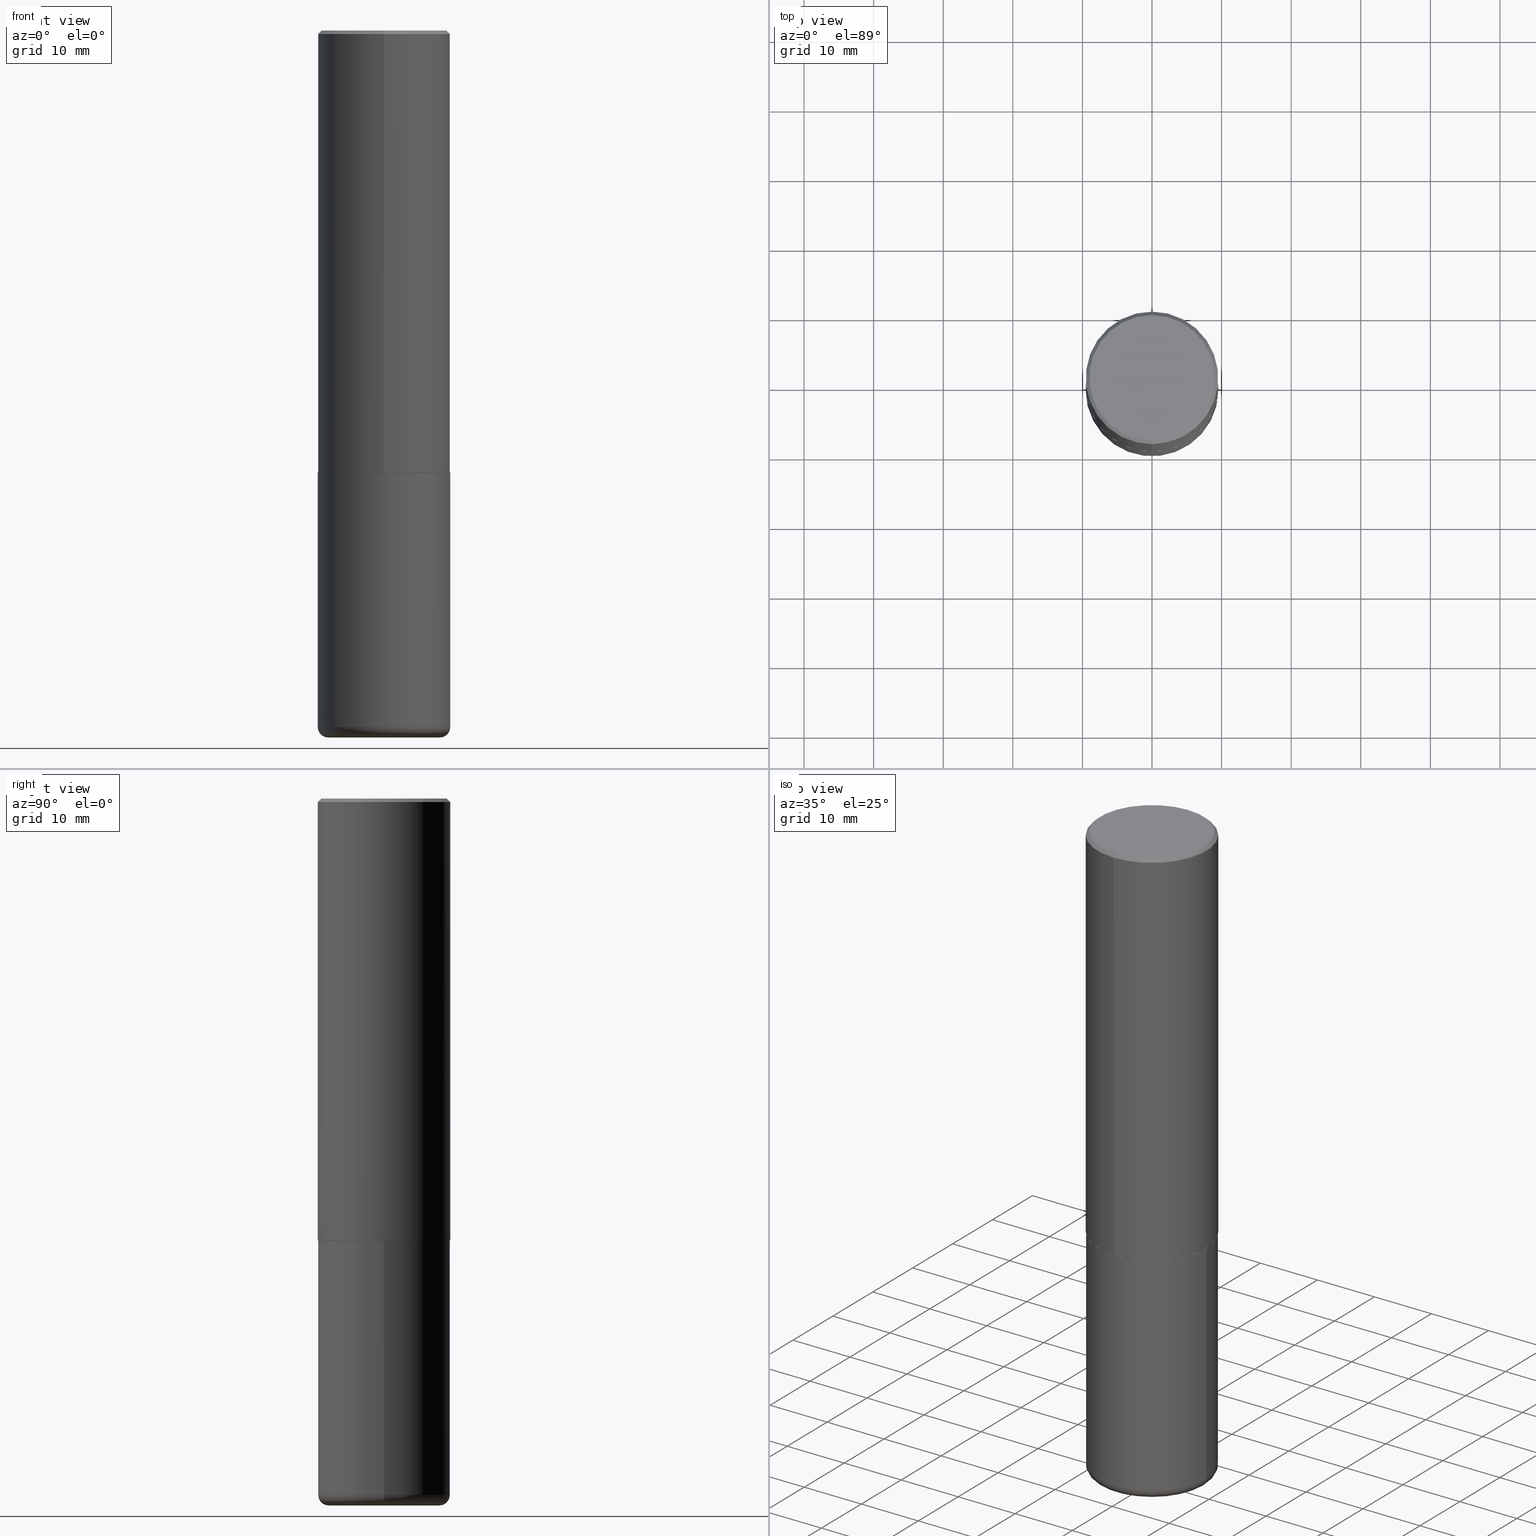
[diagram: canonical four-view strip — front | top / right | iso, engineering-drawing reading convention]
A machine part, canonical four-view strip (front | top / right | iso — engineering-drawing reading convention). The complete STEP part file that produces these views, byte-faithful:
ISO-10303-21;
HEADER;
FILE_DESCRIPTION (( 'STEP AP203' ),
    '1' );
FILE_NAME ('36713.STEP',
    '2024-03-01T17:28:04',
    ( '' ),
    ( '' ),
    'SwSTEP 2.0',
    'SolidWorks 2023',
    '' );
FILE_SCHEMA (( 'CONFIG_CONTROL_DESIGN' ));
ENDSEC;

DATA;
#1 = DIRECTION ( 'NONE',  ( -2.445468806185136597E-29, 3.491481338843145583E-15, 1.000000000000000000 ) ) ;
#2 = CARTESIAN_POINT ( 'NONE',  ( 6.111361335692102474E-29, -8.732012372055284037E-15, -2.499999999999999556 ) ) ;
#3 =( CONVERSION_BASED_UNIT ( 'INCH', #157 ) LENGTH_UNIT ( ) NAMED_UNIT ( #13 ) );
#4 = CARTESIAN_POINT ( 'NONE',  ( -2.611628041454602471E-15, -0.3740000000000087699, -2.499999999999998668 ) ) ;
#5 = AXIS2_PLACEMENT_3D ( 'NONE', #94, #37, #357 ) ;
#6 = CIRCLE ( 'NONE', #160, 0.3150000000000000577 ) ;
#7 = CARTESIAN_POINT ( 'NONE',  ( 6.113672015462840371E-29, -8.728703347107863365E-15, -2.499999999999999556 ) ) ;
#8 = UNCERTAINTY_MEASURE_WITH_UNIT (LENGTH_MEASURE( 1.000000000000000082E-05 ), #3, 'distance_accuracy_value', 'NONE');
#9 = CARTESIAN_POINT ( 'NONE',  ( -0.3150000000000000577, -1.140980847683494193E-14, -4.000000000000000888 ) ) ;
#10 = APPROVAL_STATUS ( 'not_yet_approved' ) ;
#11 = EDGE_CURVE ( 'NONE', #366, #172, #68, .T. ) ;
#12 = AXIS2_PLACEMENT_3D ( 'NONE', #213, #237, #341 ) ;
#13 = DIMENSIONAL_EXPONENTS ( 1.000000000000000000, 0.000000000000000000, 0.000000000000000000, 0.000000000000000000, 0.000000000000000000, 0.000000000000000000, 0.000000000000000000 ) ;
#14 = ADVANCED_BREP_SHAPE_REPRESENTATION ( '36713', ( #203, #344, #105 ), #321 ) ;
#15 = ORIENTED_EDGE ( 'NONE', *, *, #368, .F. ) ;
#16 = EDGE_CURVE ( 'NONE', #314, #366, #408, .T. ) ;
#17 = EDGE_LOOP ( 'NONE', ( #100, #339, #79, #149 ) ) ;
#18 = DIRECTION ( 'NONE',  ( 2.438088387897960049E-29, -3.491481338843145188E-15, -1.000000000000000000 ) ) ;
#19 = CIRCLE ( 'NONE', #206, 0.3550000000000001488 ) ;
#20 = DIRECTION ( 'NONE',  ( 1.000000000000000000, -6.982962677686265922E-15, 4.876176775795935793E-29 ) ) ;
#21 = ORIENTED_EDGE ( 'NONE', *, *, #80, .F. ) ;
#22 = DIRECTION ( 'NONE',  ( -2.444544534276841438E-29, 3.492804948822114088E-15, 1.000000000000000000 ) ) ;
#23 = CIRCLE ( 'NONE', #184, 0.3750000000000000555 ) ;
#24 = ADVANCED_FACE ( 'NONE', ( #147 ), #82, .T. ) ;
#25 = CARTESIAN_POINT ( 'NONE',  ( 0.000000000000000000, 0.000000000000000000, 0.000000000000000000 ) ) ;
#26 = ORIENTED_EDGE ( 'NONE', *, *, #11, .F. ) ;
#27 = PRODUCT_RELATED_PRODUCT_CATEGORY ( 'detail', '', ( #209 ) ) ;
#28 = MECHANICAL_CONTEXT ( 'NONE', #365, 'mechanical' ) ;
#29 = CARTESIAN_POINT ( 'NONE',  ( 6.111361335692102474E-29, -8.732012372055284037E-15, -2.499999999999999556 ) ) ;
#30 = ADVANCED_FACE ( 'NONE', ( #114 ), #292, .T. ) ;
#31 = COORDINATED_UNIVERSAL_TIME_OFFSET ( 5, 0, .BEHIND. ) ;
#32 = LINE ( 'NONE', #288, #305 ) ;
#33 = CLOSED_SHELL ( 'NONE', ( #373, #24, #418, #132, #124, #88, #218, #398 ) ) ;
#34 = AXIS2_PLACEMENT_3D ( 'NONE', #29, #222, #182 ) ;
#35 = DIRECTION ( 'NONE',  ( -6.982962677686266711E-15, -1.000000000000000000, 3.492804948822114482E-15 ) ) ;
#36 = APPROVAL_STATUS ( 'not_yet_approved' ) ;
#37 = DIRECTION ( 'NONE',  ( -2.444544534276841438E-29, 3.492804948822114088E-15, 1.000000000000000000 ) ) ;
#38 = EDGE_LOOP ( 'NONE', ( #395, #372, #53, #21 ) ) ;
#39 = DIRECTION ( 'NONE',  ( -2.444544534276841158E-29, 3.492804948822114482E-15, 1.000000000000000000 ) ) ;
#40 = ORGANIZATION ( 'UNSPECIFIED', 'UNSPECIFIED', '' ) ;
#41 = DATE_AND_TIME ( #330, #258 ) ;
#42 = ORIENTED_EDGE ( 'NONE', *, *, #291, .T. ) ;
#43 = ORIENTED_EDGE ( 'NONE', *, *, #52, .F. ) ;
#44 = PERSON_AND_ORGANIZATION ( #363, #40 ) ;
#45 = AXIS2_PLACEMENT_3D ( 'NONE', #260, #57, #215 ) ;
#46 = AXIS2_PLACEMENT_3D ( 'NONE', #251, #154, #224 ) ;
#47 = AXIS2_PLACEMENT_3D ( 'NONE', #207, #410, #374 ) ;
#48 = VERTEX_POINT ( 'NONE', #307 ) ;
#49 = CC_DESIGN_PERSON_AND_ORGANIZATION_ASSIGNMENT ( #44, #262, ( #111 ) ) ;
#50 = ORIENTED_EDGE ( 'NONE', *, *, #99, .T. ) ;
#51 = APPLICATION_CONTEXT ( 'configuration controlled 3d designs of mechanical parts and assemblies' ) ;
#52 = EDGE_CURVE ( 'NONE', #125, #205, #145, .T. ) ;
#53 = ORIENTED_EDGE ( 'NONE', *, *, #78, .F. ) ;
#54 = DIRECTION ( 'NONE',  ( 1.000000000000000000, -6.982962677686265922E-15, 0.000000000000000000 ) ) ;
#55 = ORIENTED_EDGE ( 'NONE', *, *, #71, .F. ) ;
#56 = ORIENTED_EDGE ( 'NONE', *, *, #337, .F. ) ;
#57 = DIRECTION ( 'NONE',  ( -2.445468806185136597E-29, 3.491481338843145583E-15, 1.000000000000000000 ) ) ;
#58 = CARTESIAN_POINT ( 'NONE',  ( -0.3150000000000000577, -1.151822685739767881E-14, -3.939999999999999947 ) ) ;
#59 = FACE_OUTER_BOUND ( 'NONE', #379, .T. ) ;
#60 = CIRCLE ( 'NONE', #214, 0.3750000000000002776 ) ;
#61 = ORIENTED_EDGE ( 'NONE', *, *, #337, .T. ) ;
#62 = DIRECTION ( 'NONE',  ( -6.982962677686266711E-15, -1.000000000000000000, 3.492804948822114482E-15 ) ) ;
#63 = FACE_OUTER_BOUND ( 'NONE', #397, .T. ) ;
#64 = ORIENTED_EDGE ( 'NONE', *, *, #368, .T. ) ;
#65 = PERSON_AND_ORGANIZATION ( #363, #40 ) ;
#66 = DIRECTION ( 'NONE',  ( 1.000000000000000000, -6.982962677686271444E-15, 0.000000000000000000 ) ) ;
#67 = DIRECTION ( 'NONE',  ( 1.000000000000000000, -6.982962677686264344E-15, 0.000000000000000000 ) ) ;
#68 = CIRCLE ( 'NONE', #191, 0.3750000000000000555 ) ;
#69 = AXIS2_PLACEMENT_3D ( 'NONE', #25, #176, #20 ) ;
#70 = PERSON_AND_ORGANIZATION ( #363, #40 ) ;
#71 = EDGE_CURVE ( 'NONE', #231, #315, #275, .T. ) ;
#72 = ORIENTED_EDGE ( 'NONE', *, *, #128, .T. ) ;
#73 = APPROVAL_PERSON_ORGANIZATION ( #150, #173, #319 ) ;
#74 = PERSON_AND_ORGANIZATION ( #363, #40 ) ;
#75 = EDGE_LOOP ( 'NONE', ( #77, #64, #140, #208 ) ) ;
#76 = VECTOR ( 'NONE', #115, 39.37007874015748143 ) ;
#77 = ORIENTED_EDGE ( 'NONE', *, *, #128, .F. ) ;
#78 = EDGE_CURVE ( 'NONE', #314, #223, #234, .T. ) ;
#79 = ORIENTED_EDGE ( 'NONE', *, *, #11, .T. ) ;
#80 = EDGE_CURVE ( 'NONE', #125, #314, #381, .T. ) ;
#81 = DIRECTION ( 'NONE',  ( -2.445468806185136597E-29, 3.491481338843145583E-15, 1.000000000000000000 ) ) ;
#82 = CYLINDRICAL_SURFACE ( 'NONE', #12, 0.3750000000000001665 ) ;
#83 = CARTESIAN_POINT ( 'NONE',  ( 4.579723842388064751E-45, -6.543583836022733140E-31, -1.873446680218842448E-16 ) ) ;
#84 = DIRECTION ( 'NONE',  ( -2.445468806185136597E-29, 3.491481338843145583E-15, 1.000000000000000000 ) ) ;
#85 = AXIS2_PLACEMENT_3D ( 'NONE', #130, #324, #35 ) ;
#86 = FACE_OUTER_BOUND ( 'NONE', #17, .T. ) ;
#87 = DIRECTION ( 'NONE',  ( -2.445468806185136597E-29, 3.491481338843145583E-15, 1.000000000000000000 ) ) ;
#88 = ADVANCED_FACE ( 'NONE', ( #392 ), #167, .T. ) ;
#89 = PERSON_AND_ORGANIZATION_ROLE ( 'creator' ) ;
#90 = DIRECTION ( 'NONE',  ( 1.000000000000000000, -6.982962677686265922E-15, 4.876176775795935793E-29 ) ) ;
#91 =( LENGTH_UNIT ( ) NAMED_UNIT ( * ) SI_UNIT ( $, .METRE. ) );
#92 = CARTESIAN_POINT ( 'NONE',  ( 6.111361335692102474E-29, -8.732012372055284037E-15, -2.499999999999999556 ) ) ;
#93 = VECTOR ( 'NONE', #39, 39.37007874015748143 ) ;
#94 = CARTESIAN_POINT ( 'NONE',  ( 0.000000000000000000, 0.000000000000000000, 0.000000000000000000 ) ) ;
#95 = EDGE_LOOP ( 'NONE', ( #61, #72, #317, #55 ) ) ;
#96 = CC_DESIGN_PERSON_AND_ORGANIZATION_ASSIGNMENT ( #386, #89, ( #187 ) ) ;
#97 = LINE ( 'NONE', #155, #229 ) ;
#98 = PERSON_AND_ORGANIZATION_ROLE ( 'creator' ) ;
#99 = EDGE_CURVE ( 'NONE', #48, #231, #104, .T. ) ;
#100 = ORIENTED_EDGE ( 'NONE', *, *, #409, .F. ) ;
#101 = COORDINATED_UNIVERSAL_TIME_OFFSET ( 5, 0, .BEHIND. ) ;
#102 = VERTEX_POINT ( 'NONE', #393 ) ;
#103 = ORIENTED_EDGE ( 'NONE', *, *, #212, .F. ) ;
#104 = CIRCLE ( 'NONE', #367, 0.06000000000000024758 ) ;
#105 = AXIS2_PLACEMENT_3D ( 'NONE', #412, #289, #283 ) ;
#106 = FACE_OUTER_BOUND ( 'NONE', #210, .T. ) ;
#107 = CC_DESIGN_PERSON_AND_ORGANIZATION_ASSIGNMENT ( #196, #98, ( #118 ) ) ;
#108 = VERTEX_POINT ( 'NONE', #119 ) ;
#109 = CARTESIAN_POINT ( 'NONE',  ( 6.113672015462840371E-29, -8.728703347107863365E-15, -2.499999999999999556 ) ) ;
#110 = CARTESIAN_POINT ( 'NONE',  ( 4.889089068553703440E-31, -6.985609897644257463E-17, -0.02000000000000008715 ) ) ;
#111 = SECURITY_CLASSIFICATION ( '', '', #165 ) ;
#112 = DIRECTION ( 'NONE',  ( -2.445468806185136877E-29, 3.491481338843145188E-15, 1.000000000000000000 ) ) ;
#113 = CARTESIAN_POINT ( 'NONE',  ( -2.618611004132290852E-15, -0.3750000000000090483, -2.498999999999998778 ) ) ;
#114 = FACE_OUTER_BOUND ( 'NONE', #195, .T. ) ;
#115 = DIRECTION ( 'NONE',  ( -2.444544534276841158E-29, 3.492804948822114482E-15, 1.000000000000000000 ) ) ;
#116 = ORIENTED_EDGE ( 'NONE', *, *, #136, .T. ) ;
#117 = CARTESIAN_POINT ( 'NONE',  ( 4.889089068553703440E-31, -6.985609897644257463E-17, -0.02000000000000008715 ) ) ;
#118 = PRODUCT_DEFINITION_FORMATION_WITH_SPECIFIED_SOURCE ( 'ANY', '', #209, .NOT_KNOWN. ) ;
#119 = CARTESIAN_POINT ( 'NONE',  ( 2.548781377355488296E-15, 0.3550000000000001488, -1.427290424853735415E-15 ) ) ;
#120 = DATE_AND_TIME ( #152, #270 ) ;
#121 = DIRECTION ( 'NONE',  ( -2.445468806185136877E-29, 3.491481338843145188E-15, 1.000000000000000000 ) ) ;
#122 = DIRECTION ( 'NONE',  ( 6.982962677686265922E-15, 1.000000000000000000, -3.492804948822114482E-15 ) ) ;
#123 = FACE_OUTER_BOUND ( 'NONE', #230, .T. ) ;
#124 = ADVANCED_FACE ( 'NONE', ( #63 ), #353, .T. ) ;
#125 = VERTEX_POINT ( 'NONE', #4 ) ;
#126 = PLANE ( 'NONE',  #34 ) ;
#127 = CC_DESIGN_SECURITY_CLASSIFICATION ( #111, ( #118 ) ) ;
#128 = EDGE_CURVE ( 'NONE', #200, #403, #32, .T. ) ;
#129 = FACE_OUTER_BOUND ( 'NONE', #282, .T. ) ;
#130 = CARTESIAN_POINT ( 'NONE',  ( 4.579723842388064751E-45, -6.543583836022733140E-31, -1.873446680218842448E-16 ) ) ;
#131 = CALENDAR_DATE ( 2024, 1, 3 ) ;
#132 = ADVANCED_FACE ( 'NONE', ( #123 ), #228, .T. ) ;
#133 = ORIENTED_EDGE ( 'NONE', *, *, #80, .T. ) ;
#134 = PERSON_AND_ORGANIZATION ( #363, #40 ) ;
#135 = APPROVAL_STATUS ( 'not_yet_approved' ) ;
#136 = EDGE_CURVE ( 'NONE', #108, #172, #385, .T. ) ;
#137 = APPROVAL_ROLE ( '' ) ;
#138 = CIRCLE ( 'NONE', #45, 0.3750000000000001110 ) ;
#139 = CARTESIAN_POINT ( 'NONE',  ( 6.108916791157826464E-29, -8.728519567106462304E-15, -2.498999999999999666 ) ) ;
#140 = ORIENTED_EDGE ( 'NONE', *, *, #71, .T. ) ;
#141 = EDGE_LOOP ( 'NONE', ( #301, #42, #133, #360 ) ) ;
#142 = ORIENTED_EDGE ( 'NONE', *, *, #78, .T. ) ;
#143 = CARTESIAN_POINT ( 'NONE',  ( 0.3750000000000000555, -1.134731435124021180E-14, -2.499999999999999556 ) ) ;
#144 = DIRECTION ( 'NONE',  ( -6.982962677686266711E-15, -1.000000000000000000, 2.921762560068730595E-15 ) ) ;
#145 = CIRCLE ( 'NONE', #390, 0.3739999999999999991 ) ;
#146 = AXIS2_PLACEMENT_3D ( 'NONE', #293, #287, #122 ) ;
#147 = FACE_OUTER_BOUND ( 'NONE', #302, .T. ) ;
#148 = FACE_OUTER_BOUND ( 'NONE', #348, .T. ) ;
#149 = ORIENTED_EDGE ( 'NONE', *, *, #136, .F. ) ;
#150 = PERSON_AND_ORGANIZATION ( #363, #40 ) ;
#151 = CARTESIAN_POINT ( 'NONE',  ( 0.3750000000000002220, -1.637504747917434403E-14, -3.939999999999999947 ) ) ;
#152 = CALENDAR_DATE ( 2024, 1, 3 ) ;
#153 = CONICAL_SURFACE ( 'NONE', #294, 0.3739999999999999991, 0.7853981633976873100 ) ;
#154 = DIRECTION ( 'NONE',  ( 2.444544534276841438E-29, -3.492804948822114088E-15, -1.000000000000000000 ) ) ;
#155 = CARTESIAN_POINT ( 'NONE',  ( 2.657429831742835431E-15, 0.3739999999999912839, -2.500000000000000444 ) ) ;
#156 = DIRECTION ( 'NONE',  ( 4.937700262164542520E-15, 0.7071067811865443531, -0.7071067811865506814 ) ) ;
#157 = LENGTH_MEASURE_WITH_UNIT ( LENGTH_MEASURE( 0.02539999999999999897 ), #91 );
#158 = CYLINDRICAL_SURFACE ( 'NONE', #383, 0.3750000000000001110 ) ;
#159 = VECTOR ( 'NONE', #156, 39.37007874015748143 ) ;
#160 = AXIS2_PLACEMENT_3D ( 'NONE', #309, #81, #211 ) ;
#161 = DATE_TIME_ROLE ( 'creation_date' ) ;
#162 = EDGE_LOOP ( 'NONE', ( #265, #180 ) ) ;
#163 = EDGE_CURVE ( 'NONE', #264, #200, #285, .T. ) ;
#164 = AXIS2_PLACEMENT_3D ( 'NONE', #345, #239, #54 ) ;
#165 = SECURITY_CLASSIFICATION_LEVEL ( 'unclassified' ) ;
#166 = CARTESIAN_POINT ( 'NONE',  ( 9.635147096369438236E-29, -1.375643647504199401E-14, -3.939999999999999947 ) ) ;
#167 = CONICAL_SURFACE ( 'NONE', #414, 0.3739999999999999991, 0.7853981633976873100 ) ;
#168 = ORIENTED_EDGE ( 'NONE', *, *, #409, .T. ) ;
#169 = LOCAL_TIME ( 12, 28, 4.000000000000000000, #296 ) ;
#170 = DIRECTION ( 'NONE',  ( 1.000000000000000000, -6.982962677686267499E-15, 4.883557194083113462E-29 ) ) ;
#171 = DIRECTION ( 'NONE',  ( 1.000000000000000000, -6.982962677686267499E-15, 4.883557194083113462E-29 ) ) ;
#172 = VERTEX_POINT ( 'NONE', #359 ) ;
#173 = APPROVAL ( #36, 'UNSPECIFIED' ) ;
#174 = DIRECTION ( 'NONE',  ( -1.000000000000000000, 6.982962677686265922E-15, -4.876176775795935793E-29 ) ) ;
#175 = CARTESIAN_POINT ( 'NONE',  ( 9.635147096369438236E-29, -1.375643647504199401E-14, -3.939999999999999947 ) ) ;
#176 = DIRECTION ( 'NONE',  ( -2.445468806185136597E-29, 3.491481338843145583E-15, 1.000000000000000000 ) ) ;
#177 = CARTESIAN_POINT ( 'NONE',  ( 6.111361335692102474E-29, -8.732012372055284037E-15, -2.499999999999999556 ) ) ;
#178 = CIRCLE ( 'NONE', #47, 0.3750000000000000555 ) ;
#179 = ORIENTED_EDGE ( 'NONE', *, *, #326, .T. ) ;
#180 = ORIENTED_EDGE ( 'NONE', *, *, #197, .T. ) ;
#181 = DIRECTION ( 'NONE',  ( -2.444544534276841438E-29, 3.492804948822114088E-15, 1.000000000000000000 ) ) ;
#182 = DIRECTION ( 'NONE',  ( -6.982962677686265922E-15, -1.000000000000000000, 3.492804948822114482E-15 ) ) ;
#183 = CARTESIAN_POINT ( 'NONE',  ( 6.111361335692102474E-29, -8.732012372055284037E-15, -2.499999999999999556 ) ) ;
#184 = AXIS2_PLACEMENT_3D ( 'NONE', #413, #87, #67 ) ;
#185 = DIRECTION ( 'NONE',  ( 1.000000000000000000, -6.982962677686267499E-15, 0.000000000000000000 ) ) ;
#186 = DIRECTION ( 'NONE',  ( -2.444544534276841438E-29, 3.492804948822114088E-15, 1.000000000000000000 ) ) ;
#187 = PRODUCT_DEFINITION ( 'UNKNOWN', '', #118, #333 ) ;
#188 = CARTESIAN_POINT ( 'NONE',  ( 2.664535259100408040E-15, 0.3749999999999915623, -2.499000000000000998 ) ) ;
#189 = APPLICATION_PROTOCOL_DEFINITION ( 'international standard', 'config_control_design', 1994, #51 ) ;
#190 = CARTESIAN_POINT ( 'NONE',  ( -0.3750000000000002220, -1.109190121594161832E-14, -3.939999999999999947 ) ) ;
#191 = AXIS2_PLACEMENT_3D ( 'NONE', #110, #346, #216 ) ;
#192 = CARTESIAN_POINT ( 'NONE',  ( 2.660982545421636724E-15, 0.3739999999999912839, -2.500000000000000444 ) ) ;
#193 = AXIS2_PLACEMENT_3D ( 'NONE', #295, #220, #185 ) ;
#194 = ORIENTED_EDGE ( 'NONE', *, *, #340, .T. ) ;
#195 = EDGE_LOOP ( 'NONE', ( #179, #404, #56, #402 ) ) ;
#196 = PERSON_AND_ORGANIZATION ( #363, #40 ) ;
#197 = EDGE_CURVE ( 'NONE', #403, #315, #23, .T. ) ;
#198 = VECTOR ( 'NONE', #350, 39.37007874015748143 ) ;
#199 = APPROVAL_PERSON_ORGANIZATION ( #74, #202, #137 ) ;
#200 = VERTEX_POINT ( 'NONE', #190 ) ;
#201 = APPROVAL_ROLE ( '' ) ;
#202 = APPROVAL ( #135, 'UNSPECIFIED' ) ;
#203 = MANIFOLD_SOLID_BREP ( 'Body-Move/Copy2[1]', #276 ) ;
#204 = CYLINDRICAL_SURFACE ( 'NONE', #69, 0.3750000000000001110 ) ;
#205 = VERTEX_POINT ( 'NONE', #192 ) ;
#206 = AXIS2_PLACEMENT_3D ( 'NONE', #83, #181, #62 ) ;
#207 = CARTESIAN_POINT ( 'NONE',  ( 4.889089068553703440E-31, -6.985609897644257463E-17, -0.02000000000000008715 ) ) ;
#208 = ORIENTED_EDGE ( 'NONE', *, *, #197, .F. ) ;
#209 = PRODUCT ( '36713', '36713', '', ( #28 ) ) ;
#210 = EDGE_LOOP ( 'NONE', ( #273, #343, #50, #15 ) ) ;
#211 = DIRECTION ( 'NONE',  ( 1.000000000000000000, -6.982962677686267499E-15, 0.000000000000000000 ) ) ;
#212 = EDGE_CURVE ( 'NONE', #223, #172, #259, .T. ) ;
#213 = CARTESIAN_POINT ( 'NONE',  ( 0.000000000000000000, 0.000000000000000000, 0.000000000000000000 ) ) ;
#214 = AXIS2_PLACEMENT_3D ( 'NONE', #139, #272, #371 ) ;
#215 = DIRECTION ( 'NONE',  ( 1.000000000000000000, -6.982962677686265922E-15, 0.000000000000000000 ) ) ;
#216 = DIRECTION ( 'NONE',  ( -6.982962677686265922E-15, -1.000000000000000000, 3.494488891895536035E-15 ) ) ;
#217 = DIRECTION ( 'NONE',  ( -1.000000000000000000, 7.105427357600993970E-15, 0.000000000000000000 ) ) ;
#218 = ADVANCED_FACE ( 'NONE', ( #59 ), #126, .F. ) ;
#219 = COORDINATED_UNIVERSAL_TIME_OFFSET ( 5, 0, .BEHIND. ) ;
#220 = DIRECTION ( 'NONE',  ( -2.445468806185136597E-29, 3.491481338843145583E-15, 1.000000000000000000 ) ) ;
#221 = CIRCLE ( 'NONE', #193, 0.3150000000000000577 ) ;
#222 = DIRECTION ( 'NONE',  ( -2.444544534276840877E-29, 3.492804948822114482E-15, 1.000000000000000000 ) ) ;
#223 = VERTEX_POINT ( 'NONE', #188 ) ;
#224 = DIRECTION ( 'NONE',  ( 6.982962677686265922E-15, 1.000000000000000000, -3.494488891895536035E-15 ) ) ;
#225 = CARTESIAN_POINT ( 'NONE',  ( -2.611628041454602471E-15, -0.3740000000000087699, -2.499999999999998668 ) ) ;
#226 = ADVANCED_FACE ( 'NONE', ( #253 ), #158, .T. ) ;
#227 = DATE_AND_TIME ( #332, #354 ) ;
#228 = CONICAL_SURFACE ( 'NONE', #46, 0.3750000000000000555, 0.7853981633974472798 ) ;
#229 = VECTOR ( 'NONE', #290, 39.37007874015748143 ) ;
#230 = EDGE_LOOP ( 'NONE', ( #240, #370, #116, #194 ) ) ;
#231 = VERTEX_POINT ( 'NONE', #151 ) ;
#232 = EDGE_CURVE ( 'NONE', #264, #48, #221, .T. ) ;
#233 = CC_DESIGN_PERSON_AND_ORGANIZATION_ASSIGNMENT ( #134, #331, ( #118 ) ) ;
#234 = CIRCLE ( 'NONE', #247, 0.3750000000000002776 ) ;
#235 = CIRCLE ( 'NONE', #164, 0.3750000000000001110 ) ;
#236 = CARTESIAN_POINT ( 'NONE',  ( -2.572686749164323547E-15, -0.3750000000000001110, -0.01999999999999877570 ) ) ;
#237 = DIRECTION ( 'NONE',  ( -2.444544534276841438E-29, 3.492804948822114088E-15, 1.000000000000000000 ) ) ;
#238 = ORIENTED_EDGE ( 'NONE', *, *, #326, .F. ) ;
#239 = DIRECTION ( 'NONE',  ( -2.445468806185136597E-29, 3.491481338843145583E-15, 1.000000000000000000 ) ) ;
#240 = ORIENTED_EDGE ( 'NONE', *, *, #311, .F. ) ;
#241 = CC_DESIGN_PERSON_AND_ORGANIZATION_ASSIGNMENT ( #65, #384, ( #209 ) ) ;
#242 = AXIS2_PLACEMENT_3D ( 'NONE', #166, #405, #170 ) ;
#243 = PLANE ( 'NONE',  #335 ) ;
#244 = ORIENTED_EDGE ( 'NONE', *, *, #271, .T. ) ;
#245 = FACE_OUTER_BOUND ( 'NONE', #162, .T. ) ;
#246 = ORIENTED_EDGE ( 'NONE', *, *, #291, .F. ) ;
#247 = AXIS2_PLACEMENT_3D ( 'NONE', #310, #22, #278 ) ;
#248 = LOCAL_TIME ( 12, 28, 4.000000000000000000, #219 ) ;
#249 = VECTOR ( 'NONE', #342, 39.37007874015748143 ) ;
#250 = FACE_OUTER_BOUND ( 'NONE', #38, .T. ) ;
#251 = CARTESIAN_POINT ( 'NONE',  ( 4.889089068553703440E-31, -6.985609897644257463E-17, -0.02000000000000008715 ) ) ;
#252 = APPROVAL_DATE_TIME ( #120, #173 ) ;
#253 = FACE_OUTER_BOUND ( 'NONE', #95, .T. ) ;
#254 = CARTESIAN_POINT ( 'NONE',  ( -0.3750000000000000555, -8.578034651974552203E-15, -2.499999999999999556 ) ) ;
#255 = DIRECTION ( 'NONE',  ( -2.444544534276841438E-29, 3.492804948822114088E-15, 1.000000000000000000 ) ) ;
#256 = VECTOR ( 'NONE', #112, 39.37007874015748143 ) ;
#257 =( NAMED_UNIT ( * ) SI_UNIT ( $, .STERADIAN. ) SOLID_ANGLE_UNIT ( ) );
#258 = LOCAL_TIME ( 12, 28, 4.000000000000000000, #101 ) ;
#259 = LINE ( 'NONE', #417, #93 ) ;
#260 = CARTESIAN_POINT ( 'NONE',  ( 9.635147096369438236E-29, -1.375643647504199401E-14, -3.939999999999999947 ) ) ;
#261 = DIRECTION ( 'NONE',  ( 7.105427357601001859E-15, 1.000000000000000000, -3.491481338843145583E-15 ) ) ;
#262 = PERSON_AND_ORGANIZATION_ROLE ( 'classification_officer' ) ;
#263 = APPROVAL ( #10, 'UNSPECIFIED' ) ;
#264 = VERTEX_POINT ( 'NONE', #9 ) ;
#265 = ORIENTED_EDGE ( 'NONE', *, *, #377, .T. ) ;
#266 = DATE_TIME_ROLE ( 'classification_date' ) ;
#267 = AXIS2_PLACEMENT_3D ( 'NONE', #58, #261, #217 ) ;
#268 = APPROVAL_DATE_TIME ( #394, #263 ) ;
#269 = COORDINATED_UNIVERSAL_TIME_OFFSET ( 5, 0, .BEHIND. ) ;
#270 = LOCAL_TIME ( 12, 28, 4.000000000000000000, #31 ) ;
#271 = EDGE_CURVE ( 'NONE', #108, #102, #329, .T. ) ;
#272 = DIRECTION ( 'NONE',  ( -2.444544534276841438E-29, 3.492804948822114088E-15, 1.000000000000000000 ) ) ;
#273 = ORIENTED_EDGE ( 'NONE', *, *, #163, .F. ) ;
#274 = CC_DESIGN_DATE_AND_TIME_ASSIGNMENT ( #299, #161, ( #187 ) ) ;
#275 = LINE ( 'NONE', #406, #256 ) ;
#276 = CLOSED_SHELL ( 'NONE', ( #226, #30, #322, #303, #318, #349 ) ) ;
#277 = AXIS2_PLACEMENT_3D ( 'NONE', #7, #1, #416 ) ;
#278 = DIRECTION ( 'NONE',  ( -6.982962677686266711E-15, -1.000000000000000000, 2.913971193241878794E-15 ) ) ;
#279 = EDGE_CURVE ( 'NONE', #205, #223, #97, .T. ) ;
#280 = PLANE ( 'NONE',  #286 ) ;
#281 = ORIENTED_EDGE ( 'NONE', *, *, #355, .T. ) ;
#282 = EDGE_LOOP ( 'NONE', ( #244, #168 ) ) ;
#283 = DIRECTION ( 'NONE',  ( 1.000000000000000000, 0.000000000000000000, 0.000000000000000000 ) ) ;
#284 = DIRECTION ( 'NONE',  ( -2.444544534276841438E-29, 3.492804948822114088E-15, 1.000000000000000000 ) ) ;
#285 = CIRCLE ( 'NONE', #267, 0.06000000000000024758 ) ;
#286 = AXIS2_PLACEMENT_3D ( 'NONE', #304, #18, #174 ) ;
#287 = DIRECTION ( 'NONE',  ( 2.444544534276840877E-29, -3.492804948822114482E-15, -1.000000000000000000 ) ) ;
#288 = CARTESIAN_POINT ( 'NONE',  ( -0.3750000000000001110, 2.664535259100376486E-15, -1.844600658845590159E-29 ) ) ;
#289 = DIRECTION ( 'NONE',  ( 0.000000000000000000, 0.000000000000000000, 1.000000000000000000 ) ) ;
#290 = DIRECTION ( 'NONE',  ( 5.024295867789263036E-15, 0.7071067811867189912, 0.7071067811863760433 ) ) ;
#291 = EDGE_CURVE ( 'NONE', #205, #125, #399, .T. ) ;
#292 = TOROIDAL_SURFACE ( 'NONE', #334, 0.3150000000000000577, 0.06000000000000024758 ) ;
#293 = CARTESIAN_POINT ( 'NONE',  ( 2.478951750578625787E-15, 0.3550000000000001488, -1.333618090842793268E-15 ) ) ;
#294 = AXIS2_PLACEMENT_3D ( 'NONE', #183, #186, #356 ) ;
#295 = CARTESIAN_POINT ( 'NONE',  ( 9.781875224740547508E-29, -1.396592535537258391E-14, -4.000000000000000888 ) ) ;
#296 = COORDINATED_UNIVERSAL_TIME_OFFSET ( 5, 0, .BEHIND. ) ;
#297 = APPROVAL_DATE_TIME ( #41, #202 ) ;
#298 = ORIENTED_EDGE ( 'NONE', *, *, #212, .T. ) ;
#299 = DATE_AND_TIME ( #352, #248 ) ;
#300 = CC_DESIGN_APPROVAL ( #263, ( #118 ) ) ;
#301 = ORIENTED_EDGE ( 'NONE', *, *, #279, .F. ) ;
#302 = EDGE_LOOP ( 'NONE', ( #142, #298, #26, #364 ) ) ;
#303 = ADVANCED_FACE ( 'NONE', ( #313 ), #204, .T. ) ;
#304 = CARTESIAN_POINT ( 'NONE',  ( 4.937077108964125641E-29, -2.090395200594849049E-14, -4.000000000000000000 ) ) ;
#305 = VECTOR ( 'NONE', #121, 39.37007874015748143 ) ;
#306 = CONICAL_SURFACE ( 'NONE', #369, 0.3750000000000000555, 0.7853981633974472798 ) ;
#307 = CARTESIAN_POINT ( 'NONE',  ( 0.3150000000000000577, -1.616555859884375729E-14, -4.000000000000000888 ) ) ;
#308 = DIRECTION ( 'NONE',  ( -2.444544534276841438E-29, 3.492804948822114088E-15, 1.000000000000000000 ) ) ;
#309 = CARTESIAN_POINT ( 'NONE',  ( 9.781875224740547508E-29, -1.396592535537258391E-14, -4.000000000000000888 ) ) ;
#310 = CARTESIAN_POINT ( 'NONE',  ( 6.108916791157826464E-29, -8.728519567106462304E-15, -2.498999999999999666 ) ) ;
#311 = EDGE_CURVE ( 'NONE', #102, #366, #380, .T. ) ;
#312 = CC_DESIGN_APPROVAL ( #202, ( #111 ) ) ;
#313 = FACE_OUTER_BOUND ( 'NONE', #75, .T. ) ;
#314 = VERTEX_POINT ( 'NONE', #113 ) ;
#315 = VERTEX_POINT ( 'NONE', #143 ) ;
#316 =( NAMED_UNIT ( * ) PLANE_ANGLE_UNIT ( ) SI_UNIT ( $, .RADIAN. ) );
#317 = ORIENTED_EDGE ( 'NONE', *, *, #377, .F. ) ;
#318 = ADVANCED_FACE ( 'NONE', ( #106 ), #415, .T. ) ;
#319 = APPROVAL_ROLE ( '' ) ;
#320 = CARTESIAN_POINT ( 'NONE',  ( 0.3150000000000000577, -1.595606971851316740E-14, -3.939999999999999947 ) ) ;
#321 =( GEOMETRIC_REPRESENTATION_CONTEXT ( 3 ) GLOBAL_UNCERTAINTY_ASSIGNED_CONTEXT ( ( #8 ) ) GLOBAL_UNIT_ASSIGNED_CONTEXT ( ( #3, #316, #257 ) ) REPRESENTATION_CONTEXT ( 'NONE', 'WORKASPACE' ) );
#322 = ADVANCED_FACE ( 'NONE', ( #245 ), #243, .F. ) ;
#323 = PLANE ( 'NONE',  #146 ) ;
#324 = DIRECTION ( 'NONE',  ( -2.444544534276841438E-29, 3.492804948822114088E-15, 1.000000000000000000 ) ) ;
#325 = DIRECTION ( 'NONE',  ( -2.445468806185136597E-29, 3.491481338843145583E-15, 1.000000000000000000 ) ) ;
#326 = EDGE_CURVE ( 'NONE', #48, #264, #6, .T. ) ;
#327 = DIRECTION ( 'NONE',  ( -6.982962677686266711E-15, -1.000000000000000000, 3.491481338843145583E-15 ) ) ;
#328 = CC_DESIGN_DATE_AND_TIME_ASSIGNMENT ( #227, #266, ( #111 ) ) ;
#329 = CIRCLE ( 'NONE', #85, 0.3550000000000001488 ) ;
#330 = CALENDAR_DATE ( 2024, 1, 3 ) ;
#331 = PERSON_AND_ORGANIZATION_ROLE ( 'design_supplier' ) ;
#332 = CALENDAR_DATE ( 2024, 1, 3 ) ;
#333 = DESIGN_CONTEXT ( 'detailed design', #51, 'design' ) ;
#334 = AXIS2_PLACEMENT_3D ( 'NONE', #175, #84, #171 ) ;
#335 = AXIS2_PLACEMENT_3D ( 'NONE', #109, #378, #338 ) ;
#336 = SHAPE_DEFINITION_REPRESENTATION ( #396, #14 ) ;
#337 = EDGE_CURVE ( 'NONE', #231, #200, #235, .T. ) ;
#338 = DIRECTION ( 'NONE',  ( -1.000000000000000000, 6.982962677686265922E-15, -4.876176775795935793E-29 ) ) ;
#339 = ORIENTED_EDGE ( 'NONE', *, *, #311, .T. ) ;
#340 = EDGE_CURVE ( 'NONE', #172, #366, #178, .T. ) ;
#341 = DIRECTION ( 'NONE',  ( -6.982962677686266711E-15, -1.000000000000000000, 3.492804948822114482E-15 ) ) ;
#342 = DIRECTION ( 'NONE',  ( -4.851104656540958753E-15, -0.7071067811865492381, -0.7071067811865457964 ) ) ;
#343 = ORIENTED_EDGE ( 'NONE', *, *, #232, .T. ) ;
#344 = MANIFOLD_SOLID_BREP ( 'Body-Move/Copy2[2]', #33 ) ;
#345 = CARTESIAN_POINT ( 'NONE',  ( 9.635147096369438236E-29, -1.375643647504199401E-14, -3.939999999999999947 ) ) ;
#346 = DIRECTION ( 'NONE',  ( -2.444544534276841438E-29, 3.492804948822114088E-15, 1.000000000000000000 ) ) ;
#347 = AXIS2_PLACEMENT_3D ( 'NONE', #2, #255, #382 ) ;
#348 = EDGE_LOOP ( 'NONE', ( #238, #411 ) ) ;
#349 = ADVANCED_FACE ( 'NONE', ( #148 ), #280, .T. ) ;
#350 = DIRECTION ( 'NONE',  ( -4.937700262165728178E-15, -0.7071067811867141062, 0.7071067811863809283 ) ) ;
#351 = ORIENTED_EDGE ( 'NONE', *, *, #16, .T. ) ;
#352 = CALENDAR_DATE ( 2024, 1, 3 ) ;
#353 = CYLINDRICAL_SURFACE ( 'NONE', #5, 0.3750000000000001665 ) ;
#354 = LOCAL_TIME ( 12, 28, 4.000000000000000000, #269 ) ;
#355 = EDGE_CURVE ( 'NONE', #223, #314, #60, .T. ) ;
#356 = DIRECTION ( 'NONE',  ( -6.982962677686266711E-15, -1.000000000000000000, 2.921762560068730595E-15 ) ) ;
#357 = DIRECTION ( 'NONE',  ( -6.982962677686266711E-15, -1.000000000000000000, 3.492804948822114482E-15 ) ) ;
#358 = APPLICATION_PROTOCOL_DEFINITION ( 'international standard', 'config_control_design', 1994, #365 ) ;
#359 = CARTESIAN_POINT ( 'NONE',  ( 2.618611004132350411E-15, 0.3749999999999999445, -0.02000000000000139513 ) ) ;
#360 = ORIENTED_EDGE ( 'NONE', *, *, #355, .F. ) ;
#361 = CARTESIAN_POINT ( 'NONE',  ( 2.618611004132350411E-15, 0.3749999999999999445, -0.02000000000000139513 ) ) ;
#362 = APPROVAL_PERSON_ORGANIZATION ( #70, #263, #201 ) ;
#363 = PERSON ( 'UNSPECIFIED', 'UNSPECIFIED', 'UNSPECIFIED', ('UNSPECIFIED'), ('UNSPECIFIED'), ('UNSPECIFIED') ) ;
#364 = ORIENTED_EDGE ( 'NONE', *, *, #16, .F. ) ;
#365 = APPLICATION_CONTEXT ( 'configuration controlled 3d designs of mechanical parts and assemblies' ) ;
#366 = VERTEX_POINT ( 'NONE', #400 ) ;
#367 = AXIS2_PLACEMENT_3D ( 'NONE', #320, #327, #66 ) ;
#368 = EDGE_CURVE ( 'NONE', #200, #231, #138, .T. ) ;
#369 = AXIS2_PLACEMENT_3D ( 'NONE', #117, #391, #388 ) ;
#370 = ORIENTED_EDGE ( 'NONE', *, *, #271, .F. ) ;
#371 = DIRECTION ( 'NONE',  ( -6.982962677686266711E-15, -1.000000000000000000, 2.913971193241878794E-15 ) ) ;
#372 = ORIENTED_EDGE ( 'NONE', *, *, #279, .T. ) ;
#373 = ADVANCED_FACE ( 'NONE', ( #250 ), #153, .T. ) ;
#374 = DIRECTION ( 'NONE',  ( -6.982962677686265922E-15, -1.000000000000000000, 3.494488891895536035E-15 ) ) ;
#375 = CARTESIAN_POINT ( 'NONE',  ( -2.618611004132351200E-15, -0.3750000000000001665, 1.309801855808293473E-15 ) ) ;
#376 = CC_DESIGN_APPROVAL ( #173, ( #187 ) ) ;
#377 = EDGE_CURVE ( 'NONE', #315, #403, #407, .T. ) ;
#378 = DIRECTION ( 'NONE',  ( 2.438088387897960049E-29, -3.491481338843145188E-15, -1.000000000000000000 ) ) ;
#379 = EDGE_LOOP ( 'NONE', ( #43, #246 ) ) ;
#380 = LINE ( 'NONE', #236, #249 ) ;
#381 = LINE ( 'NONE', #225, #198 ) ;
#382 = DIRECTION ( 'NONE',  ( -6.982962677686266711E-15, -1.000000000000000000, 2.921762560068730595E-15 ) ) ;
#383 = AXIS2_PLACEMENT_3D ( 'NONE', #387, #325, #90 ) ;
#384 = PERSON_AND_ORGANIZATION_ROLE ( 'design_owner' ) ;
#385 = LINE ( 'NONE', #361, #159 ) ;
#386 = PERSON_AND_ORGANIZATION ( #363, #40 ) ;
#387 = CARTESIAN_POINT ( 'NONE',  ( 0.000000000000000000, 0.000000000000000000, 0.000000000000000000 ) ) ;
#388 = DIRECTION ( 'NONE',  ( 6.982962677686265922E-15, 1.000000000000000000, -3.494488891895536035E-15 ) ) ;
#389 = DIRECTION ( 'NONE',  ( -6.982962677686266711E-15, -1.000000000000000000, 2.921762560068730595E-15 ) ) ;
#390 = AXIS2_PLACEMENT_3D ( 'NONE', #177, #308, #144 ) ;
#391 = DIRECTION ( 'NONE',  ( 2.444544534276841438E-29, -3.492804948822114088E-15, -1.000000000000000000 ) ) ;
#392 = FACE_OUTER_BOUND ( 'NONE', #141, .T. ) ;
#393 = CARTESIAN_POINT ( 'NONE',  ( -2.504081769186609399E-15, -0.3550000000000001488, 1.052601088809966826E-15 ) ) ;
#394 = DATE_AND_TIME ( #131, #169 ) ;
#395 = ORIENTED_EDGE ( 'NONE', *, *, #52, .T. ) ;
#396 = PRODUCT_DEFINITION_SHAPE ( 'NONE', 'NONE',  #187 ) ;
#397 = EDGE_LOOP ( 'NONE', ( #103, #281, #351, #401 ) ) ;
#398 = ADVANCED_FACE ( 'NONE', ( #129 ), #323, .F. ) ;
#399 = CIRCLE ( 'NONE', #347, 0.3739999999999999991 ) ;
#400 = CARTESIAN_POINT ( 'NONE',  ( -2.572686749164323547E-15, -0.3750000000000001110, -0.01999999999999877570 ) ) ;
#401 = ORIENTED_EDGE ( 'NONE', *, *, #340, .F. ) ;
#402 = ORIENTED_EDGE ( 'NONE', *, *, #99, .F. ) ;
#403 = VERTEX_POINT ( 'NONE', #254 ) ;
#404 = ORIENTED_EDGE ( 'NONE', *, *, #163, .T. ) ;
#405 = DIRECTION ( 'NONE',  ( -2.445468806185136597E-29, 3.491481338843145583E-15, 1.000000000000000000 ) ) ;
#406 = CARTESIAN_POINT ( 'NONE',  ( 0.3750000000000001110, -2.618611004132350411E-15, 1.828566290923476483E-29 ) ) ;
#407 = CIRCLE ( 'NONE', #277, 0.3750000000000000555 ) ;
#408 = LINE ( 'NONE', #375, #76 ) ;
#409 = EDGE_CURVE ( 'NONE', #102, #108, #19, .T. ) ;
#410 = DIRECTION ( 'NONE',  ( -2.444544534276841438E-29, 3.492804948822114088E-15, 1.000000000000000000 ) ) ;
#411 = ORIENTED_EDGE ( 'NONE', *, *, #232, .F. ) ;
#412 = CARTESIAN_POINT ( 'NONE',  ( 0.000000000000000000, 0.000000000000000000, 0.000000000000000000 ) ) ;
#413 = CARTESIAN_POINT ( 'NONE',  ( 6.113672015462840371E-29, -8.728703347107863365E-15, -2.499999999999999556 ) ) ;
#414 = AXIS2_PLACEMENT_3D ( 'NONE', #92, #284, #389 ) ;
#415 = TOROIDAL_SURFACE ( 'NONE', #242, 0.3150000000000000577, 0.06000000000000024758 ) ;
#416 = DIRECTION ( 'NONE',  ( 1.000000000000000000, -6.982962677686264344E-15, 0.000000000000000000 ) ) ;
#417 = CARTESIAN_POINT ( 'NONE',  ( 2.664535259100376486E-15, 0.3750000000000001665, -1.309801855808293473E-15 ) ) ;
#418 = ADVANCED_FACE ( 'NONE', ( #86 ), #306, .T. ) ;
ENDSEC;
END-ISO-10303-21;
